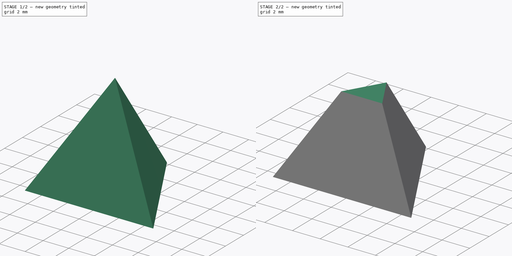
[diagram: build sequence overview — one tinted view per stage of 2, left to right]
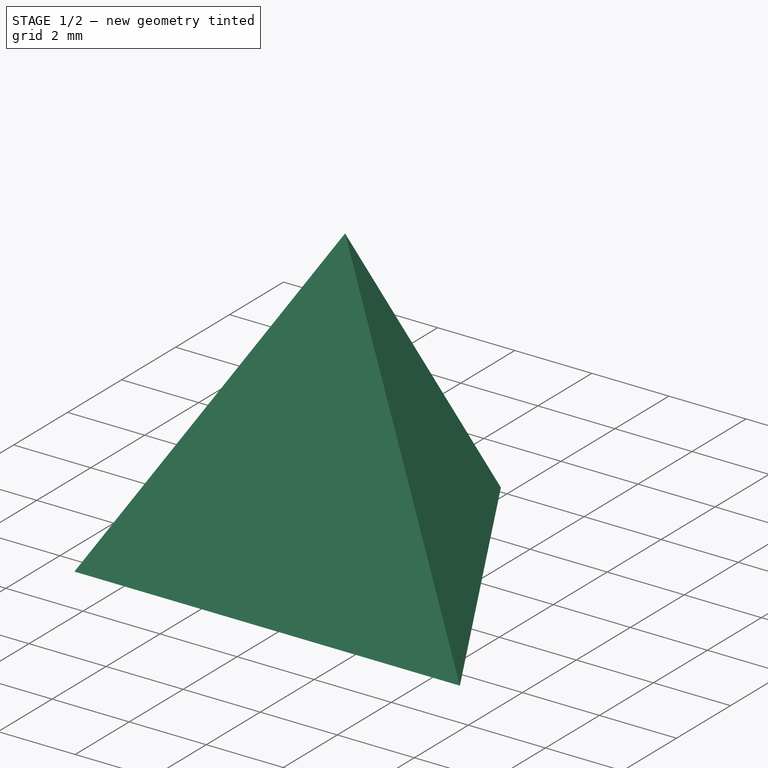
[diagram: stage 1 of 2 — iso view after this stage's code; geometry added in this stage tinted green]
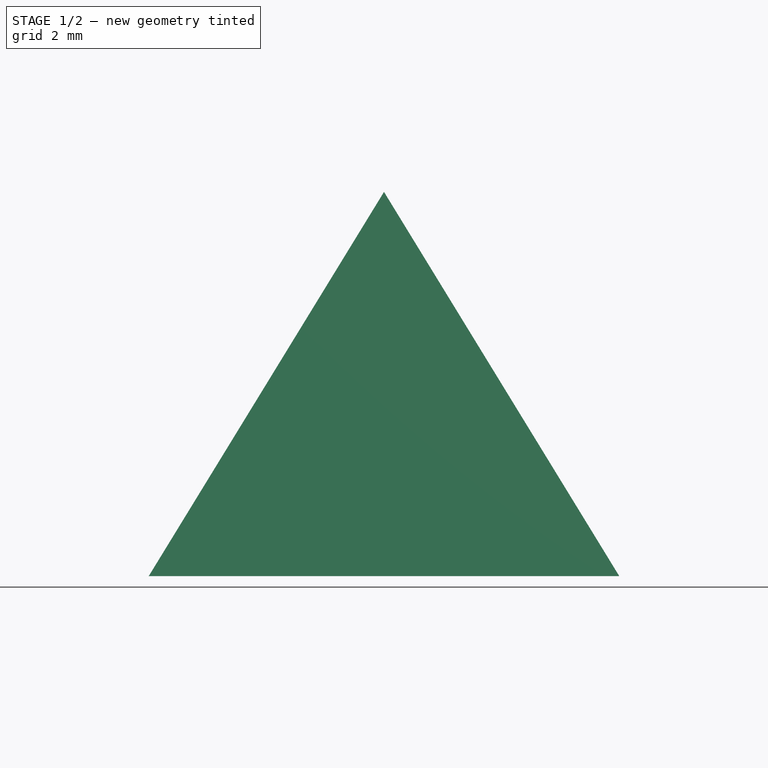
[diagram: stage 1 of 2 — front view after this stage's code; geometry added in this stage tinted green]
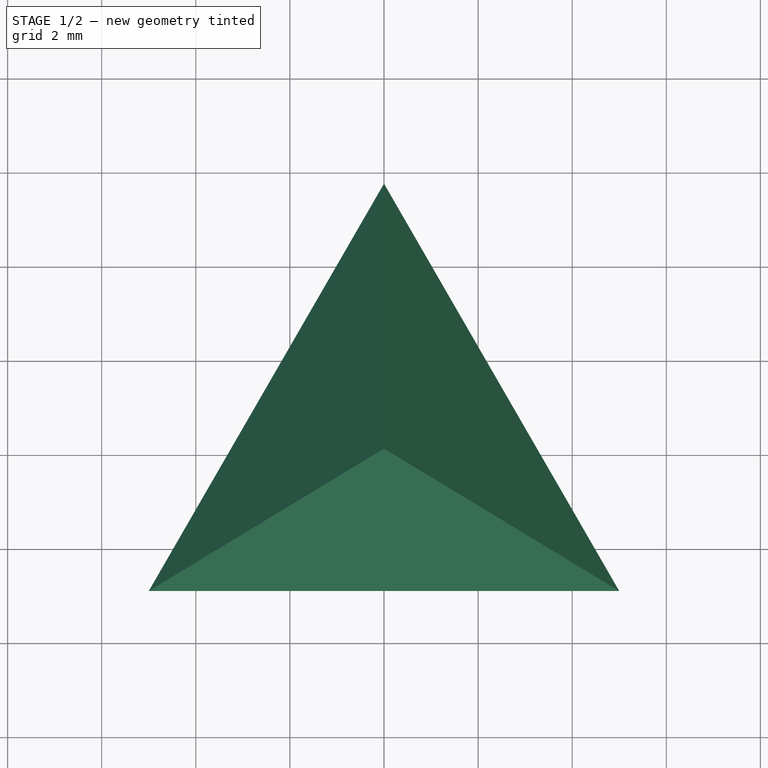
[diagram: stage 1 of 2 — top view after this stage's code; geometry added in this stage tinted green]
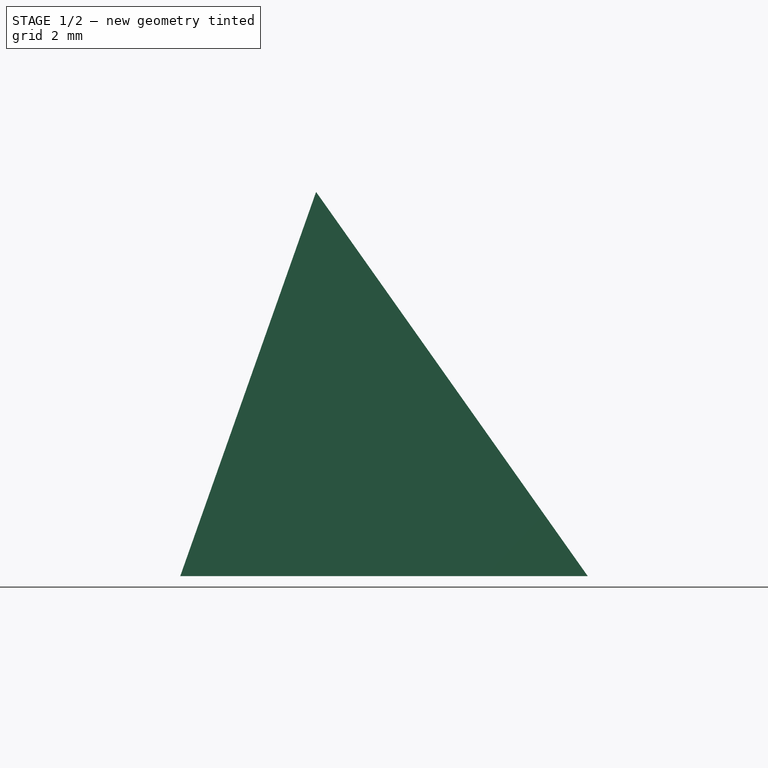
[diagram: stage 1 of 2 — right view after this stage's code; geometry added in this stage tinted green]
FCSTD DOCUMENT  (FreeCAD 0.21R33771 (Git))
Label: draft-4-face-section-corner-blank
License: All rights reserved
LicenseURL: http://en.wikipedia.org/wiki/All_rights_reserved
objects: Sketcher::SketchObject×2, PartDesign::AdditiveLoft×1, PartDesign::Plane×1, PartDesign::SubtractiveCylinder×1, PartDesign::Body×1, App::Part×1
note: 8 computed .brp shape members not serialized (recipe doc carries the construction recipe); baked Part::Feature solids carry a one-line shape summary decoded from their .brp

FEATURE [Sketcher::SketchObject] Sketch
  FullyConstrained = true
  MapMode = 5
  Support = -> [XY_Plane001]
  sketch-geometry (6):
    g0: LineSegment StartX=-5 StartY=-2.88675 StartZ=0 EndX=5 EndY=-2.88675 EndZ=0
    g1: LineSegment StartX=-5 StartY=-2.88675 StartZ=0 EndX=0 EndY=5.7735 EndZ=0
    g2: LineSegment StartX=5 StartY=-2.88675 StartZ=0 EndX=0 EndY=5.7735 EndZ=0
    g3: LineSegment StartX=-2.5 StartY=1.44338 StartZ=0 EndX=-4e-16 EndY=4e-16 EndZ=0
    g4: LineSegment StartX=2.5 StartY=1.44338 StartZ=0 EndX=0 EndY=0 EndZ=0
    g5: LineSegment StartX=-7e-16 StartY=-2.88675 StartZ=0 EndX=0 EndY=0 EndZ=0
  constraints (16):
    c: DistanceX(g0,g0) = 10
    c: PointOnObject(g1,g-2)
    c: Coincident(g2,g0)
    c: Coincident(g2,g1)
    c: Equal(g0,g1)
    c: Equal(g1,g2)
    c: Coincident(g0,g1)
    c: PointOnObject(g3,g1)
    c: Symmetric(g0,g1,g3)
    c: PointOnObject(g4,g2)
    c: Symmetric(g1,g0,g4)
    c: PointOnObject(g5,g0)
    c: Symmetric(g0,g0,g5)
    c: Coincident(g-1,g5)
    c: Coincident(g-1,g4)
    c: Equal(g4,g3)
FEATURE [Sketcher::SketchObject] Sketch001
  FullyConstrained = true
  MapMode = 5
  Placement = pos=(0,0,0) rot=(1,0,0;1.5708rad)
  Support = -> [XZ_Plane001]
  sketch-geometry (1):
    g0: LineSegment StartX=0 StartY=0 StartZ=0 EndX=0 EndY=8.16497 EndZ=0
  constraints (3):
    c: Coincident(g0,g-1)
    c: PointOnObject(g0,g-2)
    c: DistanceY(g0,g0) = 8.16497
FEATURE [PartDesign::AdditiveLoft] AdditiveLoft
  Closed = false
  Profile = -> Sketch
  Ruled = false
  Sections = -> [Sketch001]
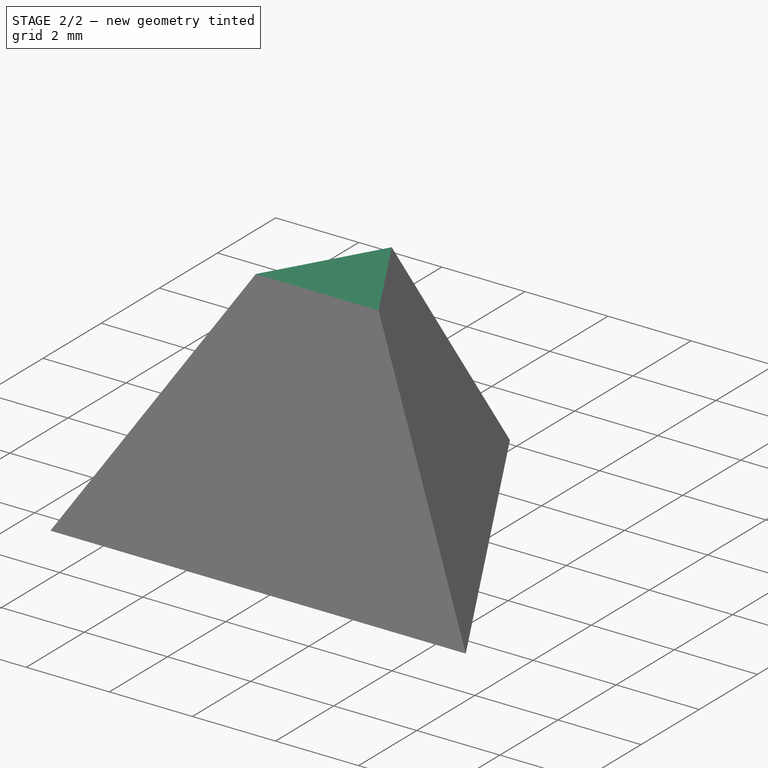
[diagram: stage 2 of 2 — iso view after this stage's code; geometry added in this stage tinted green]
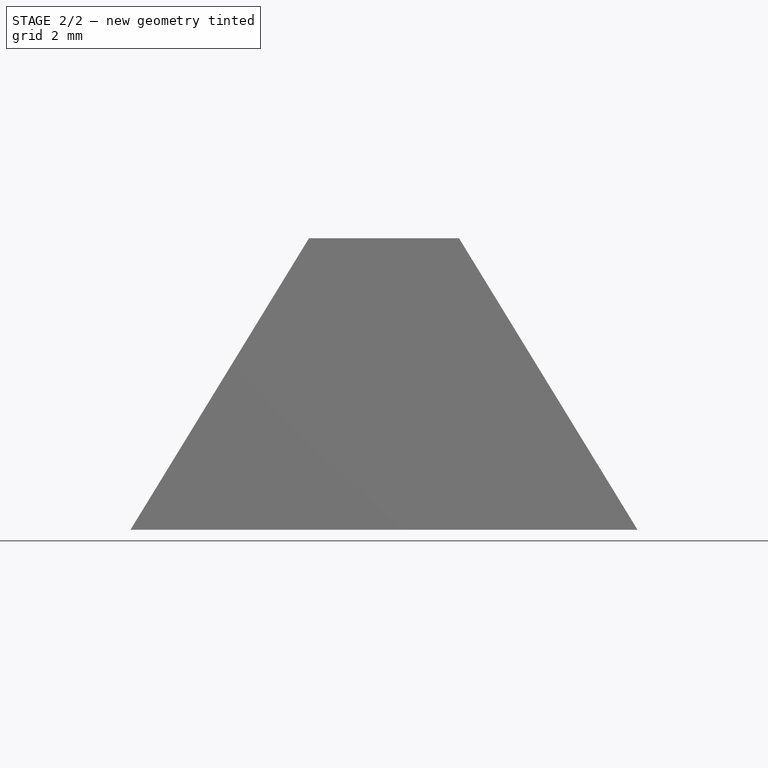
[diagram: stage 2 of 2 — front view after this stage's code; geometry added in this stage tinted green]
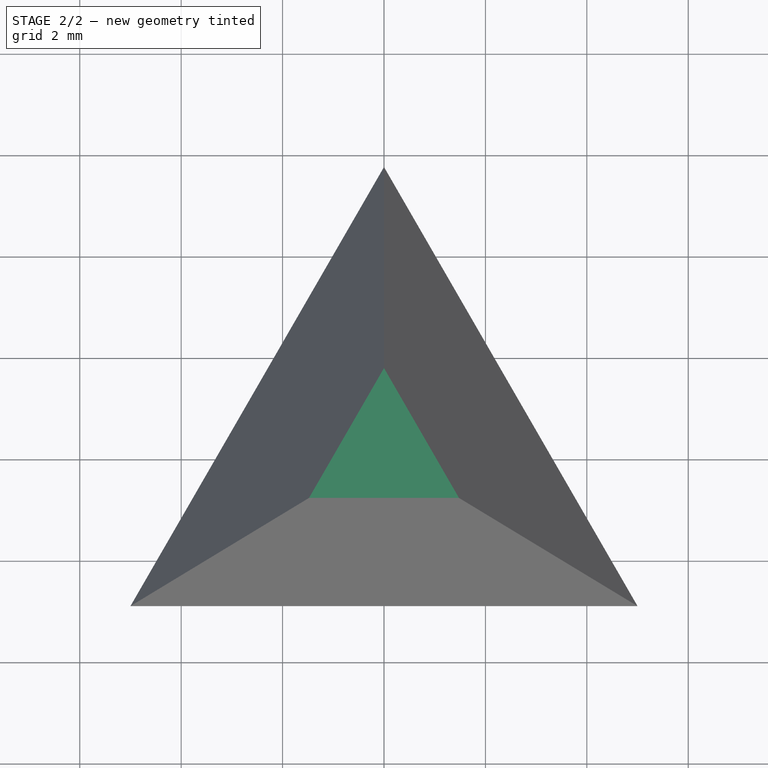
[diagram: stage 2 of 2 — top view after this stage's code; geometry added in this stage tinted green]
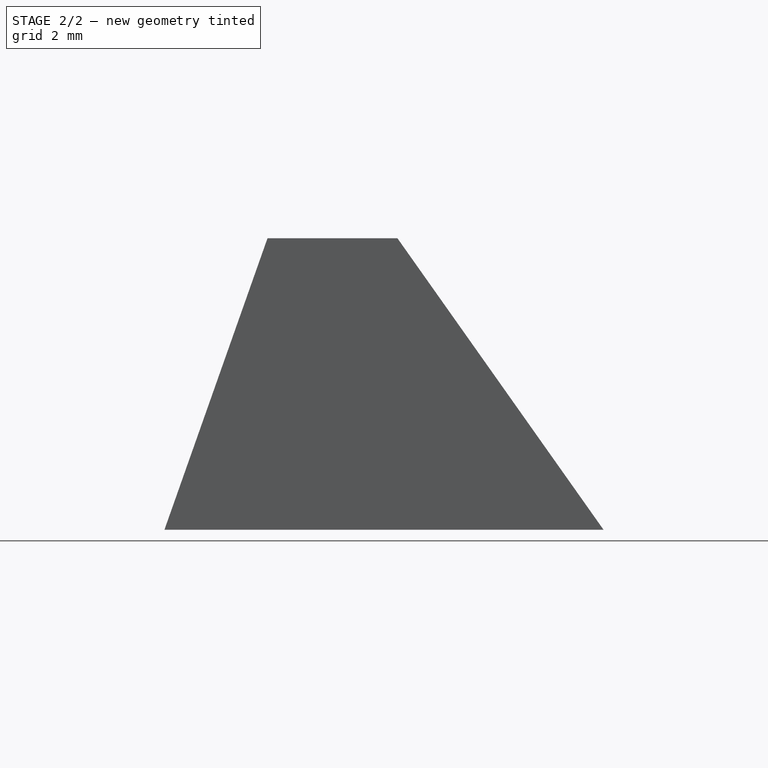
[diagram: stage 2 of 2 — right view after this stage's code; geometry added in this stage tinted green]
FEATURE [PartDesign::Plane] DatumPlane
  AttachmentOffset = pos=(0,0,-5.75) rot=(0,0,1;0rad)
  Length = 60.0456
  MapMode = 5
  Placement = pos=(0,0,5.75) rot=(1,0,0;3.14159rad)
  ResizeMode = 0
  Support = -> [AdditiveLoft]
  Width = 60.0456
FEATURE [PartDesign::SubtractiveCylinder] Cylinder
  Angle = 360
  AttacherType = Attacher::AttachEngine3D
  AttachmentOffset = pos=(0,0,-4.25) rot=(0,0,1;0rad)
  BaseFeature = -> AdditiveLoft
  FirstAngle = 0
  Height = 4.25
  MapMode = 5
  Placement = pos=(0,0,10) rot=(1,0,0;3.14159rad)
  Radius = 4
  SecondAngle = 0
  Support = -> [DatumPlane]
FEATURE [PartDesign::Body] Body
  Group = -> [Sketch,Sketch001,AdditiveLoft,DatumPlane,Cylinder]
  Origin = -> Origin001
  Tip = -> Cylinder
FEATURE [App::Part] Part
  Group = -> [Body]
  Origin = -> Origin
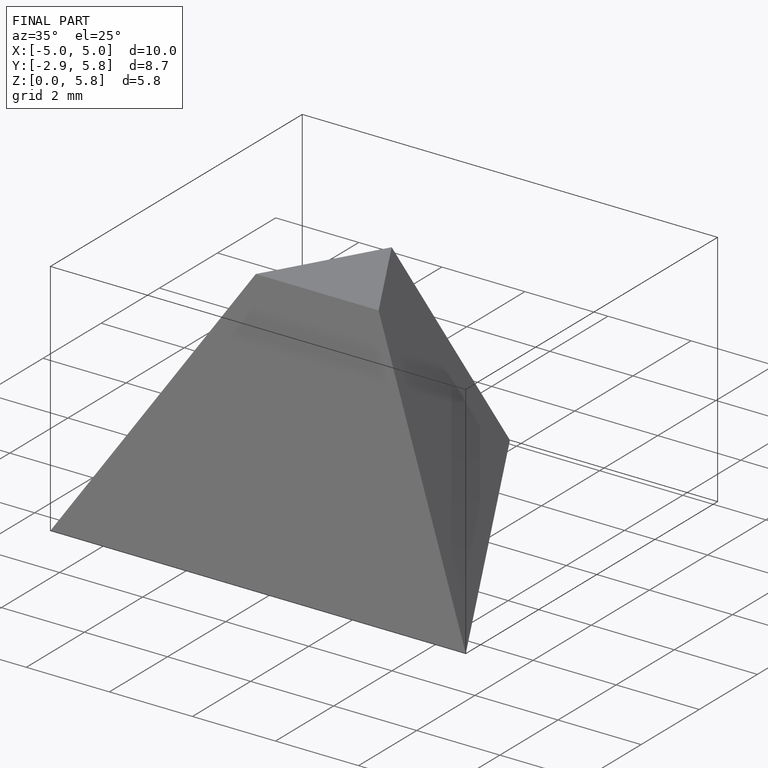
[diagram: finished part — iso view with bounding-box wireframe]
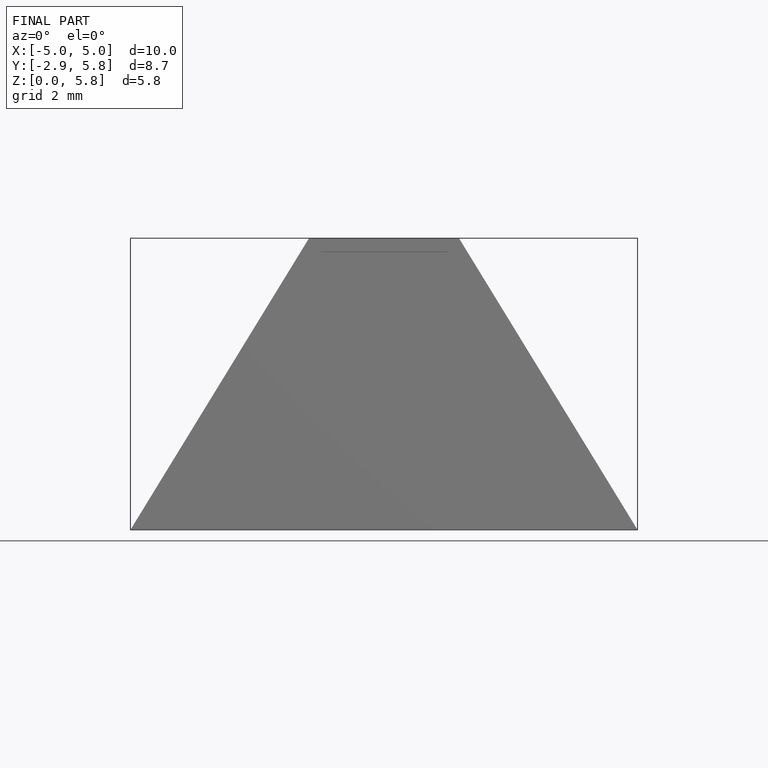
[diagram: finished part — front view with bounding-box wireframe]
